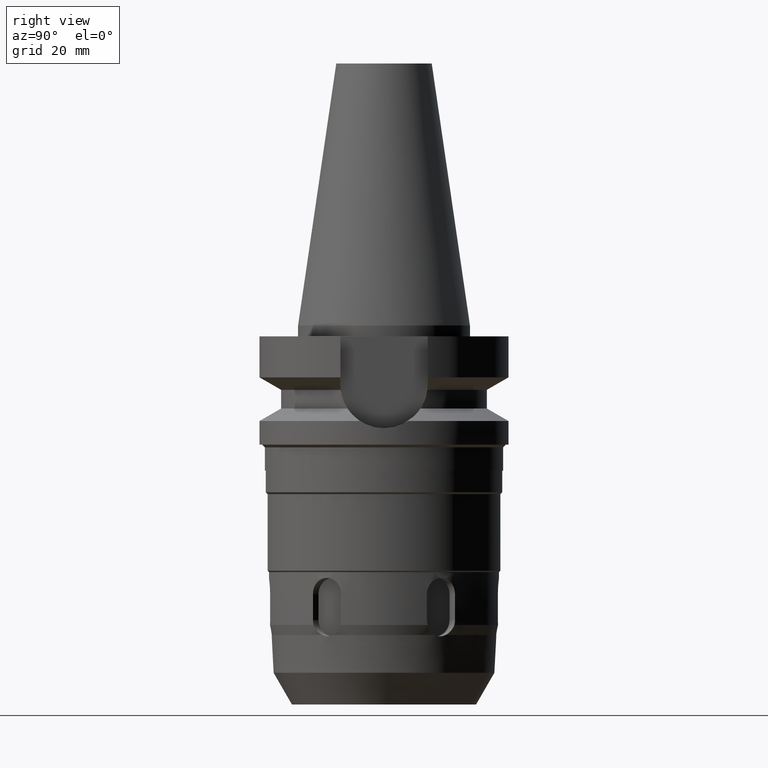
[diagram: clean part render]
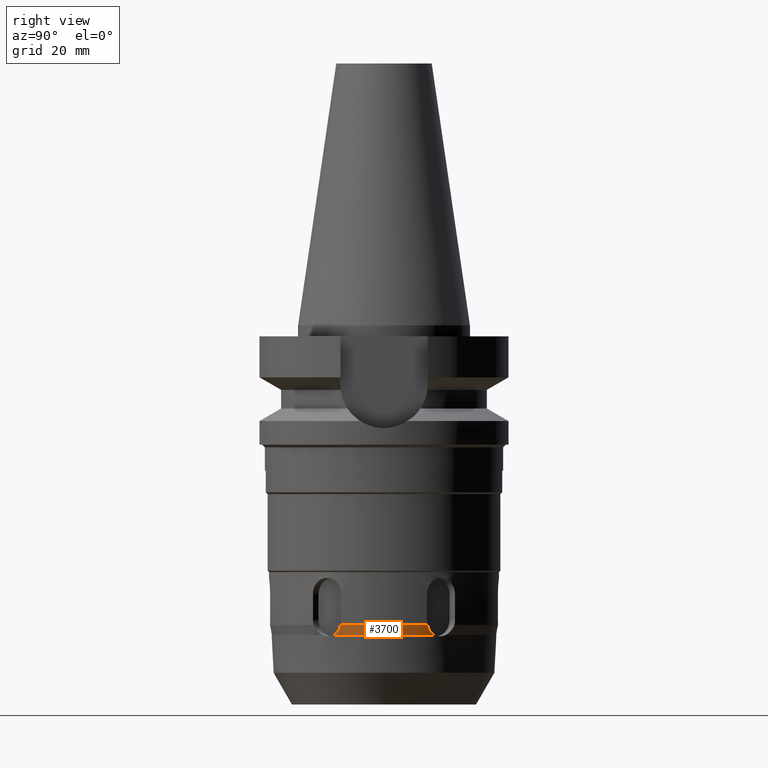
[diagram: same view with one face highlighted and labeled with its STEP entity id]
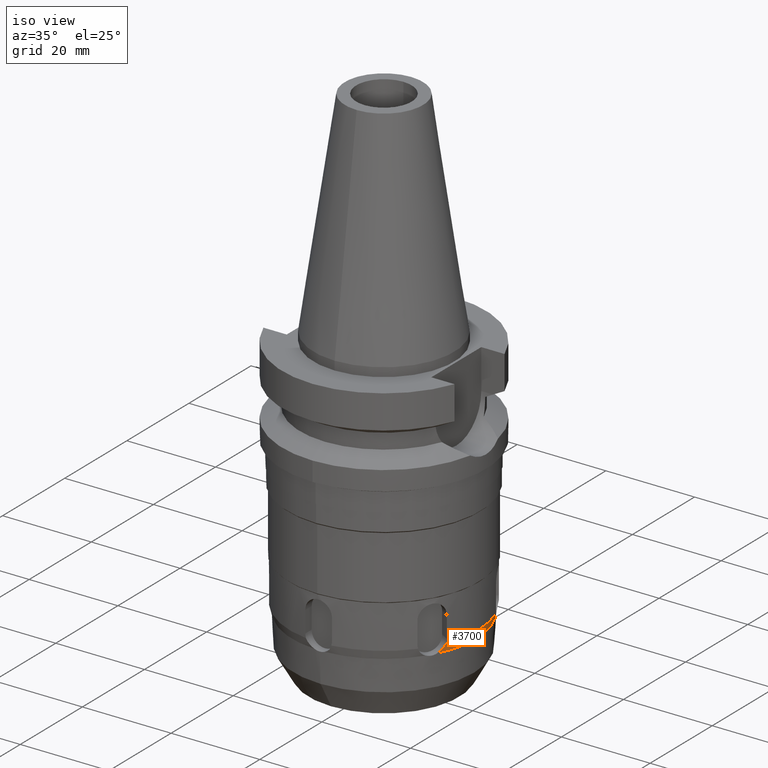
[diagram: same view with one face highlighted and labeled with its STEP entity id]
A machine part, right view. The second image highlights one B-rep face of the part: STEP entity #3700.
A second angle (iso view) of the same face is appended — the face is thin or edge-on in the first view.
In plain terms, the highlighted conical surface has half-angle 15 deg.
Its self-contained STEP definition (entity closure, byte-faithful):
#1188=CARTESIAN_POINT('',(0.E0,0.E0,-5.716689306166E1));
#1189=DIRECTION('',(0.E0,0.E0,1.E0));
#1190=DIRECTION('',(8.926110073709E-1,-4.508276716443E-1,0.E0));
#1191=AXIS2_PLACEMENT_3D('',#1188,#1189,#1190);
#1590=CARTESIAN_POINT('',(1.852147088140E1,-9.354569374494E0,
-5.716689306166E1));
#1591=CARTESIAN_POINT('',(1.863188648376E1,-9.186050812249E0,
-5.708260338421E1));
#1592=CARTESIAN_POINT('',(1.884896474718E1,-8.869187087472E0,
-5.687077092202E1));
#1593=CARTESIAN_POINT('',(1.915553814590E1,-8.477197698655E0,
-5.643432543464E1));
#1594=CARTESIAN_POINT('',(1.942755362871E1,-8.196136163783E0,
-5.591592845969E1));
#1595=CARTESIAN_POINT('',(1.959138952715E1,-8.083291629234E0,
-5.551136810298E1));
#1596=CARTESIAN_POINT('',(1.966631626823E1,-8.049790249418E0,
-5.529994046295E1));
#1601=CARTESIAN_POINT('',(0.E0,0.E0,-5.53E1));
#1602=DIRECTION('',(0.E0,0.E0,1.E0));
#1603=DIRECTION('',(9.254727337502E-1,-3.788142276697E-1,0.E0));
#1604=AXIS2_PLACEMENT_3D('',#1601,#1602,#1603);
#1609=CARTESIAN_POINT('',(1.966629611086E1,8.049802181526E0,-5.529999827928E1));
#1610=CARTESIAN_POINT('',(1.959155297473E1,8.083232185031E0,-5.551089267254E1));
#1611=CARTESIAN_POINT('',(1.942795532110E1,8.195777428132E0,-5.591506219881E1));
#1612=CARTESIAN_POINT('',(1.915566909430E1,8.476994493919E0,-5.643420825404E1));
#1613=CARTESIAN_POINT('',(1.884846836410E1,8.869859922466E0,-5.687139646974E1));
#1614=CARTESIAN_POINT('',(1.863164317484E1,9.186422155314E0,-5.708278912272E1));
#1615=CARTESIAN_POINT('',(1.852147088140E1,9.354569374494E0,-5.716689306166E1));
#2420=VERTEX_POINT('',#1590);
#2421=VERTEX_POINT('',#1596);
#2422=CARTESIAN_POINT('',(1.966629303252E1,8.049808591472E0,-5.53E1));
#2423=VERTEX_POINT('',#2422);
#2424=VERTEX_POINT('',#1615);
#3688=CARTESIAN_POINT('',(0.E0,0.E0,-5.623344653083E1));
#3689=DIRECTION('',(0.E0,0.E0,1.E0));
#3690=DIRECTION('',(0.E0,1.E0,0.E0));
#3691=AXIS2_PLACEMENT_3D('',#3688,#3689,#3690);
#3692=CONICAL_SURFACE('',#3691,2.099988375589E1,1.5E1);
#3694=ORIENTED_EDGE('',*,*,#3693,.T.);
#3695=ORIENTED_EDGE('',*,*,#3519,.T.);
#3696=ORIENTED_EDGE('',*,*,#3672,.T.);
#3697=ORIENTED_EDGE('',*,*,#3454,.F.);
#3698=EDGE_LOOP('',(#3694,#3695,#3696,#3697));
#3699=FACE_OUTER_BOUND('',#3698,.F.);
#1192=CIRCLE('',#1191,2.074976751177E1);
#1597=B_SPLINE_CURVE_WITH_KNOTS('',3,(#1590,#1591,#1592,#1593,#1594,#1595,
#1596),.UNSPECIFIED.,.F.,.F.,(4,1,1,1,4),(0.E0,2.5E-1,5.E-1,7.5E-1,1.E0),
.UNSPECIFIED.);
#1605=CIRCLE('',#1604,2.125E1);
#1616=B_SPLINE_CURVE_WITH_KNOTS('',3,(#1609,#1610,#1611,#1612,#1613,#1614,
#1615),.UNSPECIFIED.,.F.,.F.,(4,1,1,1,4),(0.E0,2.5E-1,5.E-1,7.5E-1,1.E0),
.UNSPECIFIED.);
#3454=EDGE_CURVE('',#2420,#2424,#1192,.T.);
#3519=EDGE_CURVE('',#2421,#2423,#1605,.T.);
#3672=EDGE_CURVE('',#2423,#2424,#1616,.T.);
#3693=EDGE_CURVE('',#2420,#2421,#1597,.T.);
#3700=ADVANCED_FACE('',(#3699),#3692,.T.);